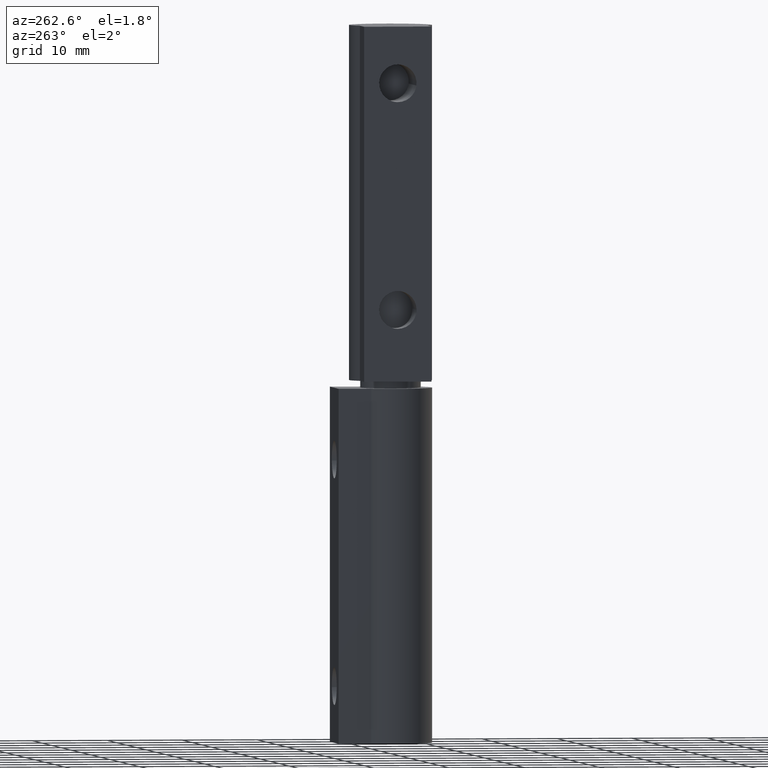
[diagram: clean part render]
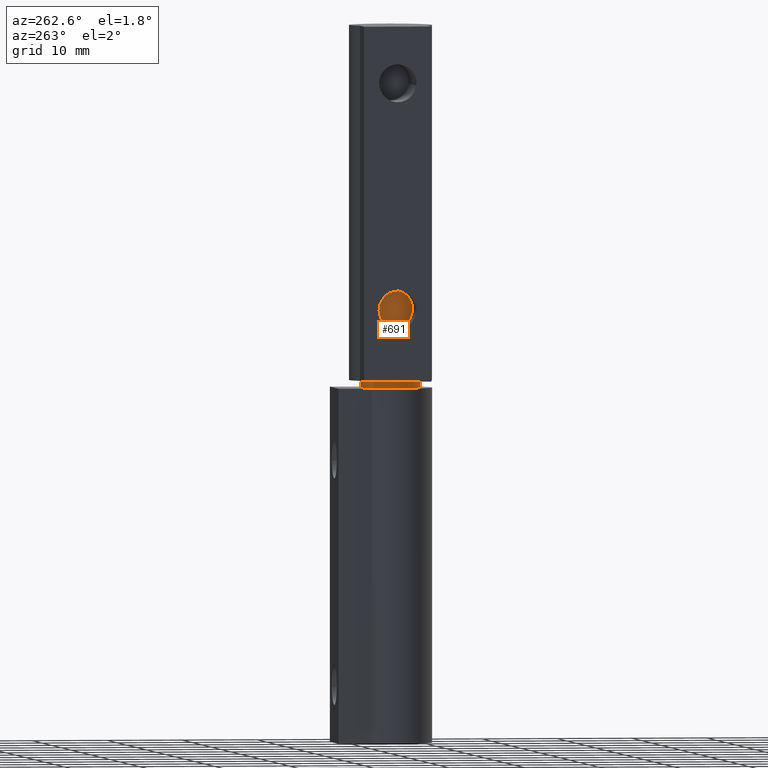
[diagram: same view with one face highlighted and labeled with its STEP entity id]
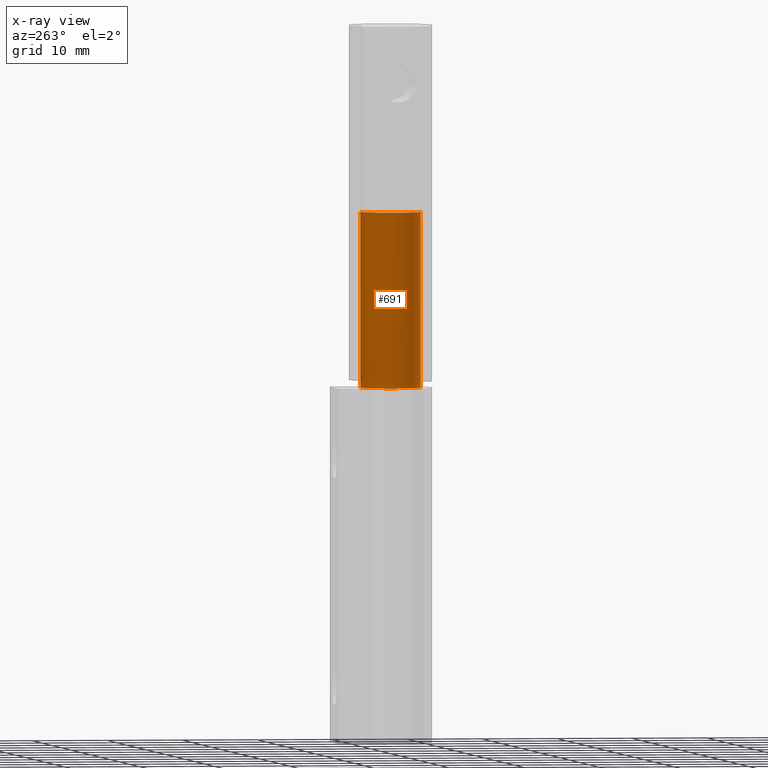
[diagram: x-ray of the same camera — body ghosted, the highlighted face saturated]
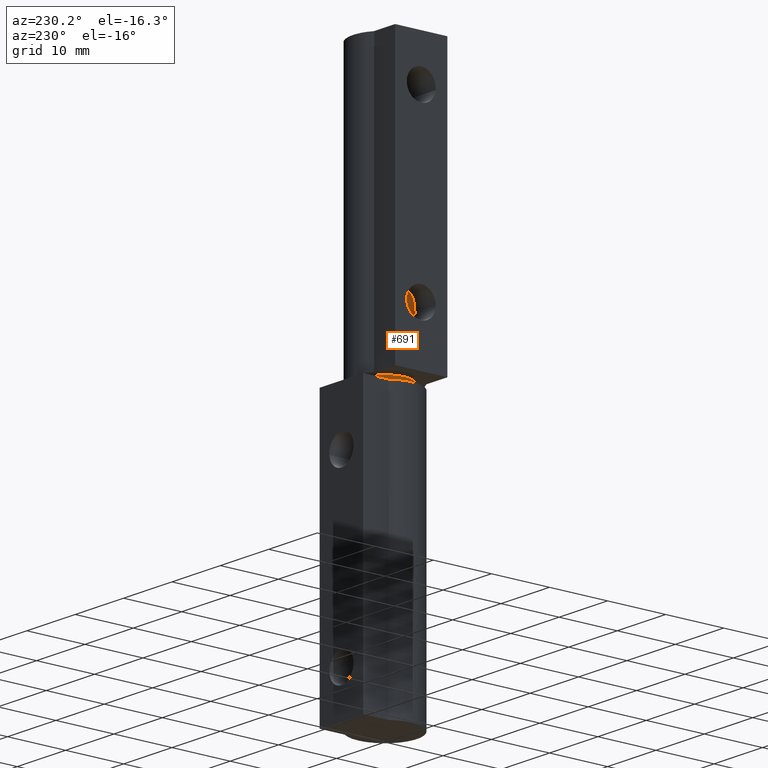
[diagram: same view with one face highlighted and labeled with its STEP entity id]
A machine part, auxiliary view. The second image highlights one B-rep face of the part: STEP entity #691.
The next image is the same camera in x-ray: the body ghosted, the highlighted face saturated — about 0% of this face is hidden behind the body in this view.
A second angle (auxiliary view) of the same face is appended — the face is thin or edge-on in the first view.
In plain terms, the highlighted face is a freeform B-spline surface patch.
Its self-contained STEP definition (entity closure, byte-faithful):
#430=CARTESIAN_POINT('',(-0.703556394846605,3.937640146101061,70.248633757306067));
#431=VERTEX_POINT('',#430);
#432=CARTESIAN_POINT('',(0.034906144002244,3.999847882236102,70.248633757390294));
#433=VERTEX_POINT('',#432);
#434=CARTESIAN_POINT('',(-0.703556394846605,3.937640146101061,70.248633757306067));
#435=CARTESIAN_POINT('',(-0.354541853460295,4.000000189989680,70.248633757390294));
#436=CARTESIAN_POINT('',(0.0,4.000000189989680,70.248633757390294));
#437=CARTESIAN_POINT('',(0.017453404462613,4.000000189989681,70.248633757390294));
#438=CARTESIAN_POINT('',(0.034906144002244,3.999847882236102,70.248633757390294));
#446=(BOUNDED_CURVE()B_SPLINE_CURVE(2,(#434,#435,#436,#437,#438),.UNSPECIFIED.,.F.,.U.)B_SPLINE_CURVE_WITH_KNOTS((3,2,3),(0.219772408947605,0.250000000000000,0.251539894365883),.UNSPECIFIED.)CURVE()GEOMETRIC_REPRESENTATION_ITEM()RATIONAL_B_SPLINE_CURVE((0.937736145619193,0.964586174238749,1.0,0.998195901530175,0.996414028028903))REPRESENTATION_ITEM(''));
#447=EDGE_CURVE('',#431,#433,#446,.T.);
#544=CARTESIAN_POINT('',(-4.000000189989680,0.0,70.248633757390294));
#545=VERTEX_POINT('',#544);
#546=CARTESIAN_POINT('',(-4.000000189989680,0.0,70.248633757390294));
#547=CARTESIAN_POINT('',(-4.000000189989680,3.348649270857478,70.248633757390294));
#548=CARTESIAN_POINT('',(-0.703556394846605,3.937640146101061,70.248633757306067));
#556=(BOUNDED_CURVE()B_SPLINE_CURVE(2,(#546,#547,#548),.UNSPECIFIED.,.F.,.U.)B_SPLINE_CURVE_WITH_KNOTS((3,3),(0.0,0.219772408947605),.UNSPECIFIED.)CURVE()GEOMETRIC_REPRESENTATION_ITEM()RATIONAL_B_SPLINE_CURVE((1.0,0.742520606947799,0.937736145619193))REPRESENTATION_ITEM(''));
#557=EDGE_CURVE('',#545,#431,#556,.T.);
#559=CARTESIAN_POINT('',(-0.496512032075315,-3.969065043800891,70.248633757390309));
#560=VERTEX_POINT('',#559);
#561=CARTESIAN_POINT('',(-0.496512032075315,-3.969065043800891,70.248633757390309));
#562=CARTESIAN_POINT('',(-4.000000189989680,-3.530794567994428,70.248633757390309));
#563=CARTESIAN_POINT('',(-4.000000189989680,0.0,70.248633757390294));
#571=(BOUNDED_CURVE()B_SPLINE_CURVE(2,(#561,#562,#563),.UNSPECIFIED.,.F.,.U.)B_SPLINE_CURVE_WITH_KNOTS((3,3),(0.771473928985399,1.0),.UNSPECIFIED.)CURVE()GEOMETRIC_REPRESENTATION_ITEM()RATIONAL_B_SPLINE_CURVE((0.954005430246196,0.732265053910968,1.0))REPRESENTATION_ITEM(''));
#572=EDGE_CURVE('',#560,#545,#571,.T.);
#624=CARTESIAN_POINT('',(-0.496512031902365,-3.969065043822558,70.829849545515600));
#625=CARTESIAN_POINT('',(-4.030931513468683,-3.526925200052781,70.829849545515600));
#626=CARTESIAN_POINT('',(-3.999847882239195,0.034906143651448,70.829849545515600));
#627=CARTESIAN_POINT('',(-3.964941738587748,4.034754025890643,70.829849545515600));
#628=CARTESIAN_POINT('',(0.034906143651448,3.999847882239195,70.829849545515600));
#629=CARTESIAN_POINT('',(-0.496512031902365,-3.969065043822558,46.404256049550469));
#630=CARTESIAN_POINT('',(-4.030931513468683,-3.526925200052781,46.404256049550476));
#631=CARTESIAN_POINT('',(-3.999847882239195,0.034906143651448,46.404256049550469));
#632=CARTESIAN_POINT('',(-3.964941738587748,4.034754025890643,46.404256049550469));
#633=CARTESIAN_POINT('',(0.034906143651448,3.999847882239195,46.404256049550469));
#641=(BOUNDED_SURFACE()B_SPLINE_SURFACE(2,1,((#624,#629),(#625,#630),(#626,#631),(#627,#632),(#628,#633)),.UNSPECIFIED.,.F.,.F.,.U.)B_SPLINE_SURFACE_WITH_KNOTS((3,2,3),(2,2),(0.0,6.097223927734446,12.724641240489280),(0.0,24.425593495965138),.UNSPECIFIED.)GEOMETRIC_REPRESENTATION_ITEM()RATIONAL_B_SPLINE_SURFACE(((0.956886118190660,0.956886118190660),(0.730538238691624,0.730538238691624),(1.0,1.0),(0.707106781186548,0.707106781186548),(1.0,1.0)))REPRESENTATION_ITEM('')SURFACE());
#642=ORIENTED_EDGE('',*,*,#572,.T.);
#643=ORIENTED_EDGE('',*,*,#557,.T.);
#644=ORIENTED_EDGE('',*,*,#447,.T.);
#645=CARTESIAN_POINT('',(0.034906143977250,3.999847882236352,47.000002232378897));
#646=VERTEX_POINT('',#645);
#647=CARTESIAN_POINT('',(0.034906144002244,3.999847882236102,70.248633757390294));
#648=CARTESIAN_POINT('',(0.034906143977250,3.999847882236352,47.000002232378897));
#649=QUASI_UNIFORM_CURVE('',1,(#647,#648),.UNSPECIFIED.,.F.,.U.);
#650=EDGE_CURVE('',#433,#646,#649,.T.);
#651=ORIENTED_EDGE('',*,*,#650,.T.);
#652=CARTESIAN_POINT('',(-4.000000189989746,0.0,47.000002232378897));
#653=VERTEX_POINT('',#652);
#654=CARTESIAN_POINT('',(0.034906143977250,3.999847882236352,47.000002232378890));
#655=CARTESIAN_POINT('',(0.017453404437618,4.000000189989747,47.000002232378897));
#656=CARTESIAN_POINT('',(0.0,4.000000189989746,47.000002232378897));
#657=CARTESIAN_POINT('',(-4.000000189989745,4.000000189989745,47.000002232378904));
#658=CARTESIAN_POINT('',(-4.000000189989746,0.0,47.000002232378897));
#666=(BOUNDED_CURVE()B_SPLINE_CURVE(2,(#654,#655,#656,#657,#658),.UNSPECIFIED.,.F.,.U.)B_SPLINE_CURVE_WITH_KNOTS((3,2,3),(0.248460105636318,0.250000000000000,0.500000000000000),.UNSPECIFIED.)CURVE()GEOMETRIC_REPRESENTATION_ITEM()RATIONAL_B_SPLINE_CURVE((0.996414028033998,0.998195901532754,1.0,0.707106781186547,1.0))REPRESENTATION_ITEM(''));
#667=EDGE_CURVE('',#646,#653,#666,.T.);
#668=ORIENTED_EDGE('',*,*,#667,.T.);
#669=CARTESIAN_POINT('',(-0.496512031975637,-3.969065043813394,47.000002232378897));
#670=VERTEX_POINT('',#669);
#671=CARTESIAN_POINT('',(-4.000000189989746,0.0,47.000002232378897));
#672=CARTESIAN_POINT('',(-4.000000189989745,-3.530794568173214,47.000002232378904));
#673=CARTESIAN_POINT('',(-0.496512031975637,-3.969065043813394,47.000002232378897));
#681=(BOUNDED_CURVE()B_SPLINE_CURVE(2,(#671,#672,#673),.UNSPECIFIED.,.F.,.U.)B_SPLINE_CURVE_WITH_KNOTS((3,3),(0.500000000000000,0.728526071023072),.UNSPECIFIED.)CURVE()GEOMETRIC_REPRESENTATION_ITEM()RATIONAL_B_SPLINE_CURVE((1.0,0.732265053901043,0.954005430262635))REPRESENTATION_ITEM(''));
#682=EDGE_CURVE('',#653,#670,#681,.T.);
#683=ORIENTED_EDGE('',*,*,#682,.T.);
#684=CARTESIAN_POINT('',(-0.496512032075315,-3.969065043800891,70.248633757390309));
#685=CARTESIAN_POINT('',(-0.496512031975637,-3.969065043813394,47.000002232378897));
#686=QUASI_UNIFORM_CURVE('',1,(#684,#685),.UNSPECIFIED.,.F.,.U.);
#687=EDGE_CURVE('',#560,#670,#686,.T.);
#688=ORIENTED_EDGE('',*,*,#687,.F.);
#689=EDGE_LOOP('',(#642,#643,#644,#651,#668,#683,#688));
#690=FACE_OUTER_BOUND('',#689,.T.);
#691=ADVANCED_FACE('',(#690),#641,.T.);